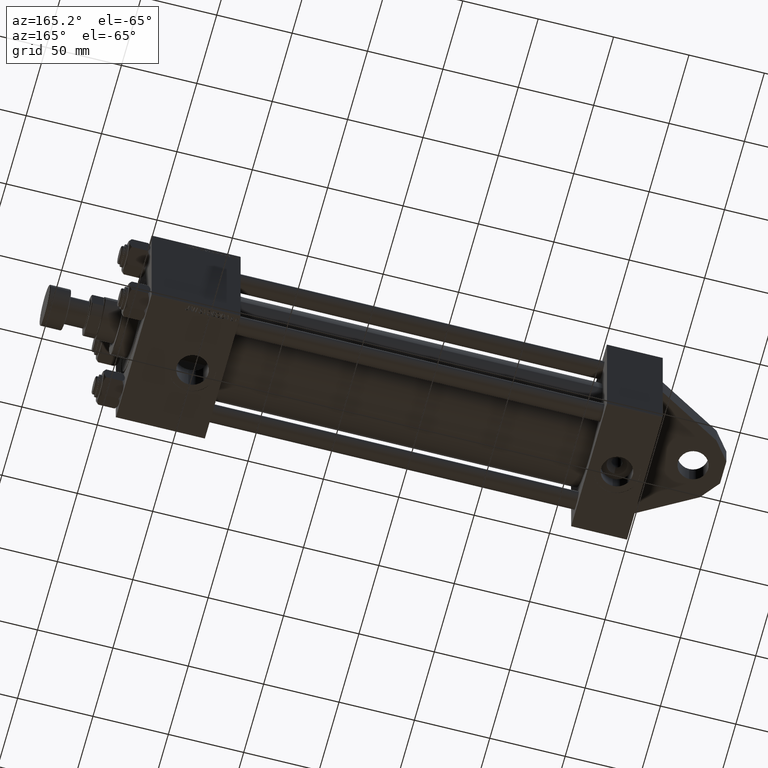
[diagram: clean part render]
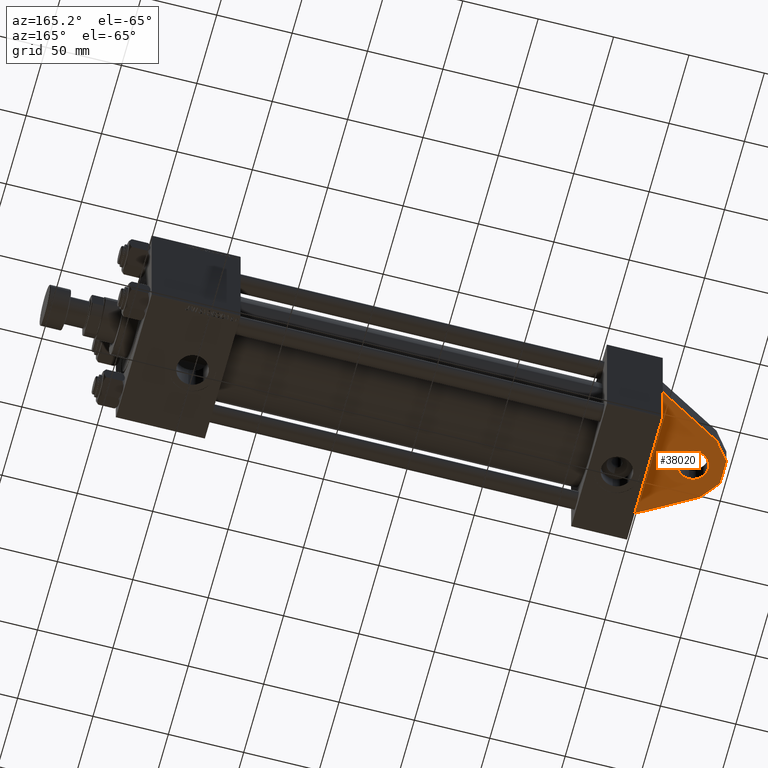
[diagram: same view with one face highlighted and labeled with its STEP entity id]
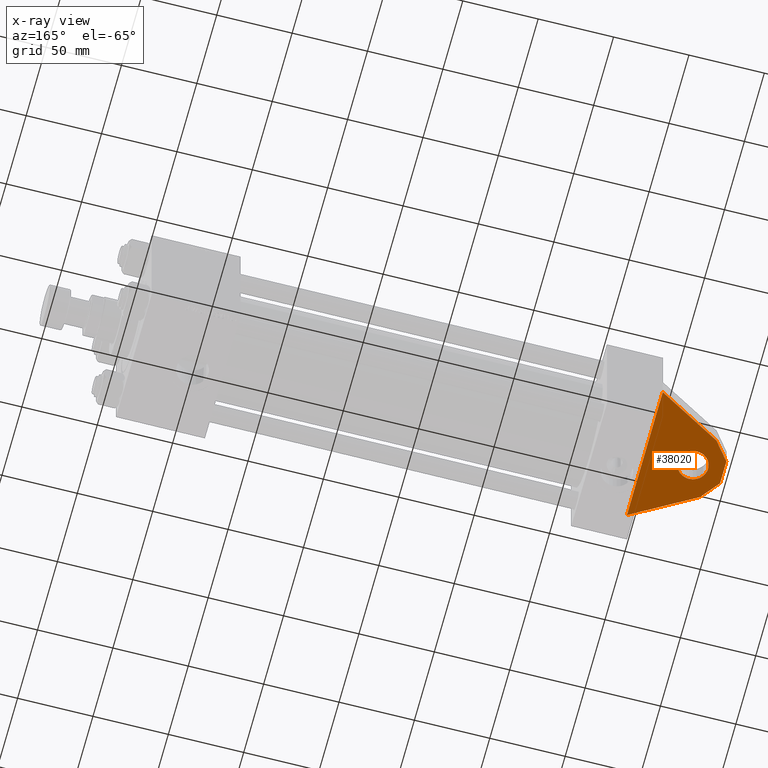
[diagram: x-ray of the same camera — body ghosted, the highlighted face saturated]
A machine part, auxiliary view. The second image highlights one B-rep face of the part: STEP entity #38020.
The next image is the same camera in x-ray: the body ghosted, the highlighted face saturated — about 0% of this face is hidden behind the body in this view.
In plain terms, the highlighted planar face has unit normal (-0, 0, 1).
Its self-contained STEP definition (entity closure, byte-faithful):
#299 = VERTEX_POINT ( 'NONE', #15757 ) ;
#380 = LINE ( 'NONE', #18335, #14883 ) ;
#1305 = ORIENTED_EDGE ( 'NONE', *, *, #3347, .T. ) ;
#2506 = CARTESIAN_POINT ( 'NONE',  ( -42.00000000000000000, -7.500000000000000000, -20.75128869403545551 ) ) ;
#2930 = CARTESIAN_POINT ( 'NONE',  ( -32.00000000000000000, -7.500000000000000000, 10.00000000000000000 ) ) ;
#3187 = VERTEX_POINT ( 'NONE', #39039 ) ;
#3244 = LINE ( 'NONE', #29786, #21907 ) ;
#3347 = EDGE_CURVE ( 'NONE', #22301, #34171, #42125, .T. ) ;
#4052 = ORIENTED_EDGE ( 'NONE', *, *, #34413, .F. ) ;
#4178 = DIRECTION ( 'NONE',  ( 0.000000000000000000, 0.000000000000000000, 1.000000000000000000 ) ) ;
#4592 = ORIENTED_EDGE ( 'NONE', *, *, #17989, .T. ) ;
#6197 = DIRECTION ( 'NONE',  ( -0.8660254037844363761, -0.000000000000000000, 0.5000000000000041078 ) ) ;
#6268 = ORIENTED_EDGE ( 'NONE', *, *, #47851, .F. ) ;
#6533 = DIRECTION ( 'NONE',  ( 0.8660254037844363761, 0.000000000000000000, 0.5000000000000041078 ) ) ;
#7459 = VECTOR ( 'NONE', #32413, 1000.000000000000227 ) ;
#9102 = PLANE ( 'NONE',  #15486 ) ;
#9474 = DIRECTION ( 'NONE',  ( 0.6171013169714327784, 0.000000000000000000, 0.7868837046172219019 ) ) ;
#10010 = EDGE_CURVE ( 'NONE', #14138, #21266, #21763, .T. ) ;
#10275 = CARTESIAN_POINT ( 'NONE',  ( -52.00000000000000711, -7.500000000000000000, -8.000000000000000000 ) ) ;
#10330 = CIRCLE ( 'NONE', #40176, 10.00000000000000000 ) ;
#10877 = CARTESIAN_POINT ( 'NONE',  ( -42.00000000000000000, -7.500000000000000000, 20.75128869403545551 ) ) ;
#10944 = ORIENTED_EDGE ( 'NONE', *, *, #47526, .F. ) ;
#11979 = EDGE_CURVE ( 'NONE', #299, #14138, #3244, .T. ) ;
#12054 = FACE_OUTER_BOUND ( 'NONE', #14453, .T. ) ;
#12178 = CARTESIAN_POINT ( 'NONE',  ( -32.00000000000000000, -7.500000000000000000, -10.00000000000000000 ) ) ;
#12484 = CARTESIAN_POINT ( 'NONE',  ( -32.00000000000000000, -7.500000000000000000, 0.000000000000000000 ) ) ;
#13258 = LINE ( 'NONE', #10275, #7459 ) ;
#13589 = LINE ( 'NONE', #2506, #21176 ) ;
#14138 = VERTEX_POINT ( 'NONE', #10877 ) ;
#14453 = EDGE_LOOP ( 'NONE', ( #43126, #33482, #4052, #10944, #6268, #33557 ) ) ;
#14883 = VECTOR ( 'NONE', #33337, 1000.000000000000000 ) ;
#15338 = LINE ( 'NONE', #48521, #28057 ) ;
#15486 = AXIS2_PLACEMENT_3D ( 'NONE', #24101, #20412, #46963 ) ;
#15757 = CARTESIAN_POINT ( 'NONE',  ( -52.00000000000000711, -7.500000000000000000, 8.000000000000000000 ) ) ;
#16374 = VECTOR ( 'NONE', #6533, 1000.000000000000000 ) ;
#17725 = EDGE_LOOP ( 'NONE', ( #1305, #4592 ) ) ;
#17989 = EDGE_CURVE ( 'NONE', #34171, #22301, #10330, .T. ) ;
#18335 = CARTESIAN_POINT ( 'NONE',  ( 0.000000000000000000, -7.500000000000000000, 45.00000000000000000 ) ) ;
#18450 = CARTESIAN_POINT ( 'NONE',  ( -32.00000000000000000, -7.500000000000000000, 0.000000000000000000 ) ) ;
#20412 = DIRECTION ( 'NONE',  ( -0.000000000000000000, 1.000000000000000000, 0.000000000000000000 ) ) ;
#20945 = AXIS2_PLACEMENT_3D ( 'NONE', #12484, #23042, #30924 ) ;
#21176 = VECTOR ( 'NONE', #6197, 1000.000000000000000 ) ;
#21266 = VERTEX_POINT ( 'NONE', #32214 ) ;
#21763 = LINE ( 'NONE', #36783, #16374 ) ;
#21907 = VECTOR ( 'NONE', #9474, 1000.000000000000227 ) ;
#22301 = VERTEX_POINT ( 'NONE', #2930 ) ;
#23042 = DIRECTION ( 'NONE',  ( 0.000000000000000000, 1.000000000000000000, 0.000000000000000000 ) ) ;
#24101 = CARTESIAN_POINT ( 'NONE',  ( 0.000000000000000000, -7.500000000000000000, 0.000000000000000000 ) ) ;
#25640 = CARTESIAN_POINT ( 'NONE',  ( -42.00000000000000000, -7.500000000000000000, -20.75128869403545551 ) ) ;
#25668 = DIRECTION ( 'NONE',  ( 0.000000000000000000, 0.000000000000000000, 1.000000000000000000 ) ) ;
#28057 = VECTOR ( 'NONE', #25668, 1000.000000000000000 ) ;
#29786 = CARTESIAN_POINT ( 'NONE',  ( -52.00000000000000711, -7.500000000000000000, 8.000000000000000000 ) ) ;
#30924 = DIRECTION ( 'NONE',  ( 0.000000000000000000, 0.000000000000000000, 1.000000000000000000 ) ) ;
#32214 = CARTESIAN_POINT ( 'NONE',  ( 0.000000000000000000, -7.500000000000000000, 45.00000000000000000 ) ) ;
#32413 = DIRECTION ( 'NONE',  ( -0.6171013169714327784, -0.000000000000000000, 0.7868837046172219019 ) ) ;
#33337 = DIRECTION ( 'NONE',  ( 0.000000000000000000, 0.000000000000000000, -1.000000000000000000 ) ) ;
#33482 = ORIENTED_EDGE ( 'NONE', *, *, #42827, .F. ) ;
#33557 = ORIENTED_EDGE ( 'NONE', *, *, #10010, .F. ) ;
#34171 = VERTEX_POINT ( 'NONE', #12178 ) ;
#34413 = EDGE_CURVE ( 'NONE', #46410, #3187, #13258, .T. ) ;
#35514 = VERTEX_POINT ( 'NONE', #41720 ) ;
#36783 = CARTESIAN_POINT ( 'NONE',  ( -42.00000000000000000, -7.500000000000000000, 20.75128869403545551 ) ) ;
#38020 = ADVANCED_FACE ( 'NONE', ( #45731, #12054 ), #9102, .F. ) ;
#39039 = CARTESIAN_POINT ( 'NONE',  ( -52.00000000000000711, -7.500000000000000000, -8.000000000000000000 ) ) ;
#40176 = AXIS2_PLACEMENT_3D ( 'NONE', #18450, #40592, #4178 ) ;
#40592 = DIRECTION ( 'NONE',  ( 0.000000000000000000, 1.000000000000000000, 0.000000000000000000 ) ) ;
#41720 = CARTESIAN_POINT ( 'NONE',  ( 0.000000000000000000, -7.499999999999985789, -44.99999999999999289 ) ) ;
#42125 = CIRCLE ( 'NONE', #20945, 10.00000000000000000 ) ;
#42827 = EDGE_CURVE ( 'NONE', #3187, #299, #15338, .T. ) ;
#43126 = ORIENTED_EDGE ( 'NONE', *, *, #11979, .F. ) ;
#45731 = FACE_BOUND ( 'NONE', #17725, .T. ) ;
#46410 = VERTEX_POINT ( 'NONE', #25640 ) ;
#46963 = DIRECTION ( 'NONE',  ( 0.000000000000000000, -0.000000000000000000, 1.000000000000000000 ) ) ;
#47526 = EDGE_CURVE ( 'NONE', #35514, #46410, #13589, .T. ) ;
#47851 = EDGE_CURVE ( 'NONE', #21266, #35514, #380, .T. ) ;
#48521 = CARTESIAN_POINT ( 'NONE',  ( -52.00000000000000711, -7.500000000000000000, -8.000000000000000000 ) ) ;